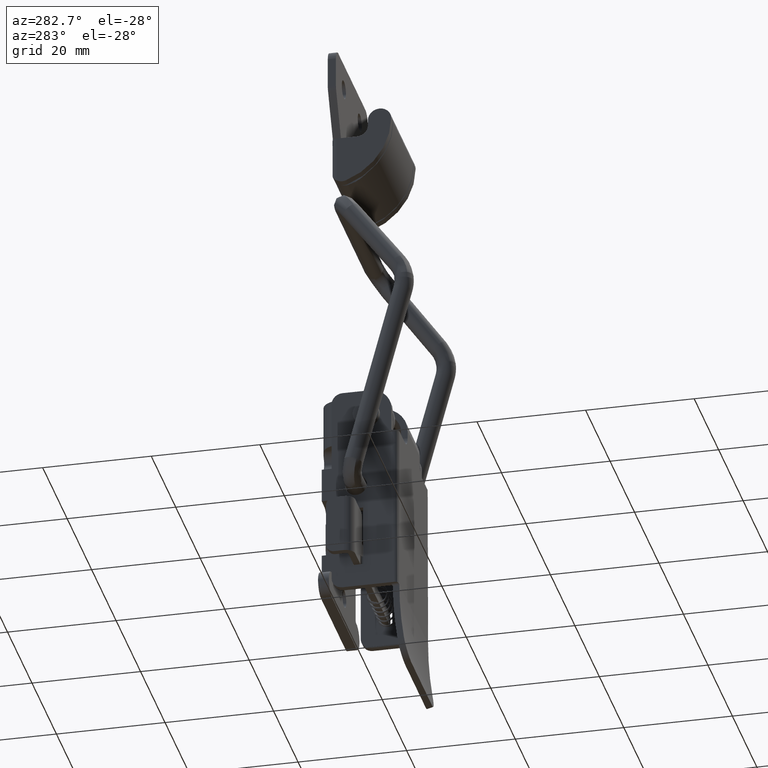
[diagram: clean part render]
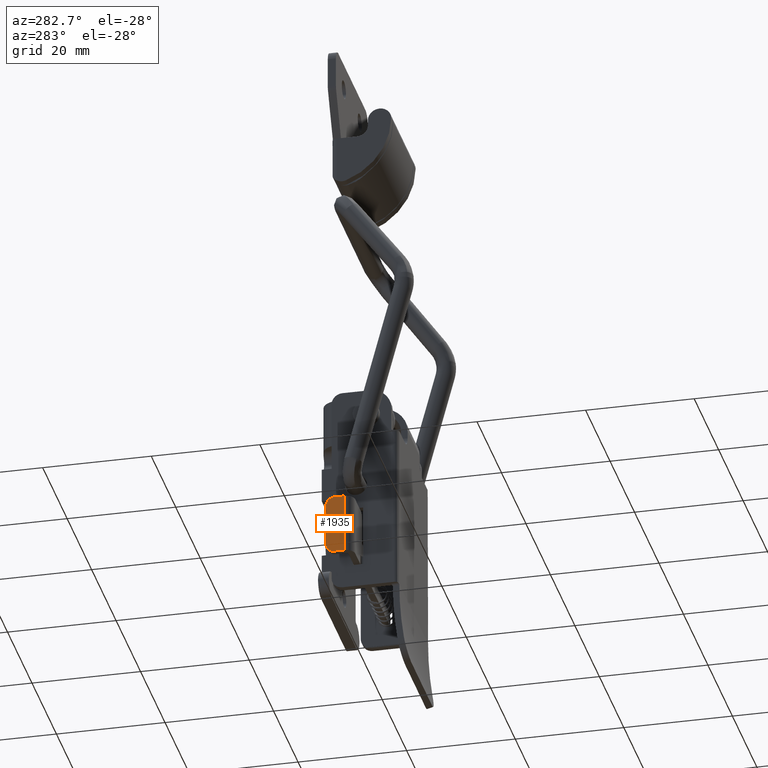
[diagram: same view with one face highlighted and labeled with its STEP entity id]
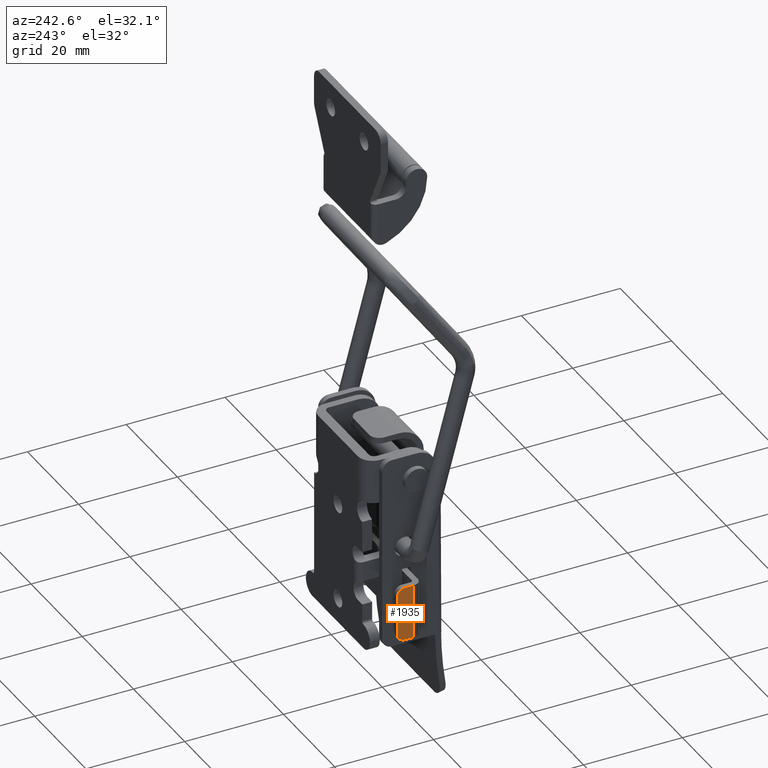
[diagram: same view with one face highlighted and labeled with its STEP entity id]
A machine part, auxiliary view. The second image highlights one B-rep face of the part: STEP entity #1935.
A second angle (auxiliary view) of the same face is appended — the face is thin or edge-on in the first view.
In plain terms, the highlighted planar face has unit normal (-1, 0, 0).
Its self-contained STEP definition (entity closure, byte-faithful):
#489 = CARTESIAN_POINT ( 'NONE',  ( -18.00000001799429900, 4.799999999999999800, -20.44999999999054900 ) ) ;
#494 = EDGE_CURVE ( 'NONE', #3733, #4250, #14318, .T. ) ;
#594 = DIRECTION ( 'NONE',  ( -1.000000000000000000, 2.756633305465364900E-012, 0.0000000000000000000 ) ) ;
#738 = CARTESIAN_POINT ( 'NONE',  ( -18.00000001799429900, 4.799999999999999800, -18.94999999999050300 ) ) ;
#1051 = EDGE_CURVE ( 'NONE', #15757, #2498, #2119, .T. ) ;
#1134 = DIRECTION ( 'NONE',  ( -1.000000000000000000, 2.756633305465364900E-012, 0.0000000000000000000 ) ) ;
#1307 = VECTOR ( 'NONE', #10962, 1000.000000000000000 ) ;
#1690 = EDGE_CURVE ( 'NONE', #10113, #2498, #16915, .T. ) ;
#1902 = DIRECTION ( 'NONE',  ( -2.757053844485805300E-012, -1.000000000000000000, 0.0000000000000000000 ) ) ;
#1935 = ADVANCED_FACE ( 'NONE', ( #4476 ), #17811, .T. ) ;
#2119 = CIRCLE ( 'NONE', #6195, 1.500000000000000000 ) ;
#2298 = ORIENTED_EDGE ( 'NONE', *, *, #1690, .F. ) ;
#2498 = VERTEX_POINT ( 'NONE', #14760 ) ;
#3207 = VECTOR ( 'NONE', #13519, 1000.000000000000000 ) ;
#3733 = VERTEX_POINT ( 'NONE', #10128 ) ;
#3929 = ORIENTED_EDGE ( 'NONE', *, *, #7674, .F. ) ;
#4250 = VERTEX_POINT ( 'NONE', #5364 ) ;
#4320 = ORIENTED_EDGE ( 'NONE', *, *, #11556, .T. ) ;
#4476 = FACE_OUTER_BOUND ( 'NONE', #14658, .T. ) ;
#4548 = LINE ( 'NONE', #6788, #1307 ) ;
#4582 = AXIS2_PLACEMENT_3D ( 'NONE', #8930, #594, #10326 ) ;
#4691 = LINE ( 'NONE', #6207, #12998 ) ;
#4741 = ORIENTED_EDGE ( 'NONE', *, *, #16307, .T. ) ;
#5364 = CARTESIAN_POINT ( 'NONE',  ( -18.00000001799924800, 3.000000000004674900, -29.94999999999049900 ) ) ;
#5639 = CARTESIAN_POINT ( 'NONE',  ( -18.00000001805030100, 6.299999999999999800, -28.44999999999055300 ) ) ;
#5766 = VERTEX_POINT ( 'NONE', #13233 ) ;
#5998 = DIRECTION ( 'NONE',  ( -1.000000000000000000, 2.756633305465364900E-012, 0.0000000000000000000 ) ) ;
#6195 = AXIS2_PLACEMENT_3D ( 'NONE', #489, #5998, #1902 ) ;
#6207 = CARTESIAN_POINT ( 'NONE',  ( -18.00000001799015000, 6.299999999999840800, -18.94999999999050300 ) ) ;
#6347 = DIRECTION ( 'NONE',  ( 0.0000000000000000000, 0.0000000000000000000, 1.000000000000000000 ) ) ;
#6788 = CARTESIAN_POINT ( 'NONE',  ( -18.00000001799924800, 3.000000000004674900, -1018.950000000000000 ) ) ;
#7674 = EDGE_CURVE ( 'NONE', #15757, #5766, #4691, .T. ) ;
#7943 = CARTESIAN_POINT ( 'NONE',  ( -18.00000001799015000, 6.299999999999840800, -29.94999999999049900 ) ) ;
#8930 = CARTESIAN_POINT ( 'NONE',  ( -18.00000001799429900, 4.799999999999999800, -28.44999999999055300 ) ) ;
#9106 = ORIENTED_EDGE ( 'NONE', *, *, #1051, .T. ) ;
#10113 = VERTEX_POINT ( 'NONE', #5639 ) ;
#10128 = CARTESIAN_POINT ( 'NONE',  ( -18.00000001799429900, 4.799999999999999800, -29.94999999999049900 ) ) ;
#10136 = CIRCLE ( 'NONE', #4582, 1.500000000000000000 ) ;
#10326 = DIRECTION ( 'NONE',  ( -2.757053844485805300E-012, -1.000000000000000000, 0.0000000000000000000 ) ) ;
#10883 = DIRECTION ( 'NONE',  ( -2.756633305465364900E-012, -1.000000000000000000, 0.0000000000000000000 ) ) ;
#10962 = DIRECTION ( 'NONE',  ( 0.0000000000000000000, 0.0000000000000000000, 1.000000000000000000 ) ) ;
#11018 = ORIENTED_EDGE ( 'NONE', *, *, #494, .T. ) ;
#11556 = EDGE_CURVE ( 'NONE', #4250, #5766, #4548, .T. ) ;
#11817 = CARTESIAN_POINT ( 'NONE',  ( -18.00000001805030100, 6.299999999999999800, -1018.950000000000000 ) ) ;
#11910 = DIRECTION ( 'NONE',  ( -2.756633305465364900E-012, -1.000000000000000000, -0.0000000000000000000 ) ) ;
#12998 = VECTOR ( 'NONE', #11910, 1000.000000000000000 ) ;
#13208 = VECTOR ( 'NONE', #6347, 1000.000000000000000 ) ;
#13233 = CARTESIAN_POINT ( 'NONE',  ( -18.00000001799924800, 3.000000000004674900, -18.94999999999050300 ) ) ;
#13519 = DIRECTION ( 'NONE',  ( -2.756633305465364900E-012, -1.000000000000000000, -0.0000000000000000000 ) ) ;
#13618 = CARTESIAN_POINT ( 'NONE',  ( -18.00000001799015000, 6.299999999999840800, -1018.950000000000000 ) ) ;
#14318 = LINE ( 'NONE', #7943, #3207 ) ;
#14658 = EDGE_LOOP ( 'NONE', ( #2298, #4741, #11018, #4320, #3929, #9106 ) ) ;
#14760 = CARTESIAN_POINT ( 'NONE',  ( -18.00000001805030100, 6.299999999999999800, -20.44999999999054900 ) ) ;
#15757 = VERTEX_POINT ( 'NONE', #738 ) ;
#15801 = AXIS2_PLACEMENT_3D ( 'NONE', #13618, #1134, #10883 ) ;
#16307 = EDGE_CURVE ( 'NONE', #10113, #3733, #10136, .T. ) ;
#16915 = LINE ( 'NONE', #11817, #13208 ) ;
#17811 = PLANE ( 'NONE',  #15801 ) ;